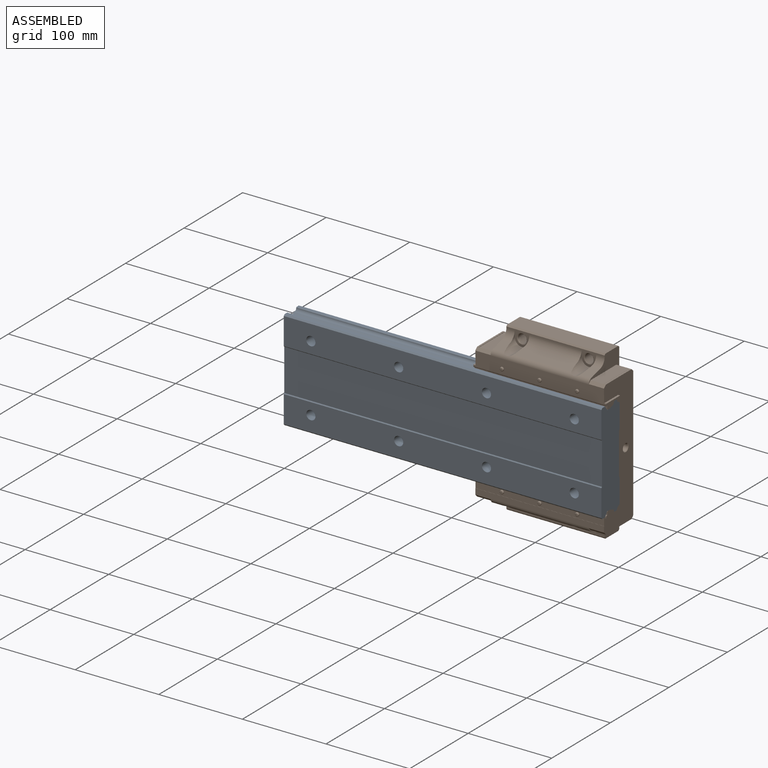
[diagram: assembled view]
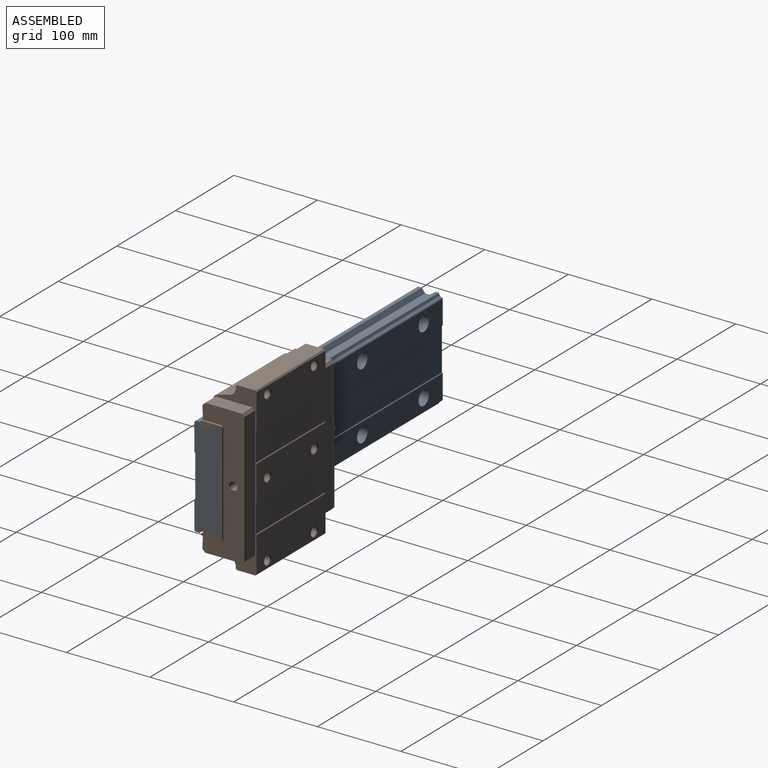
[diagram: assembled view, second angle]
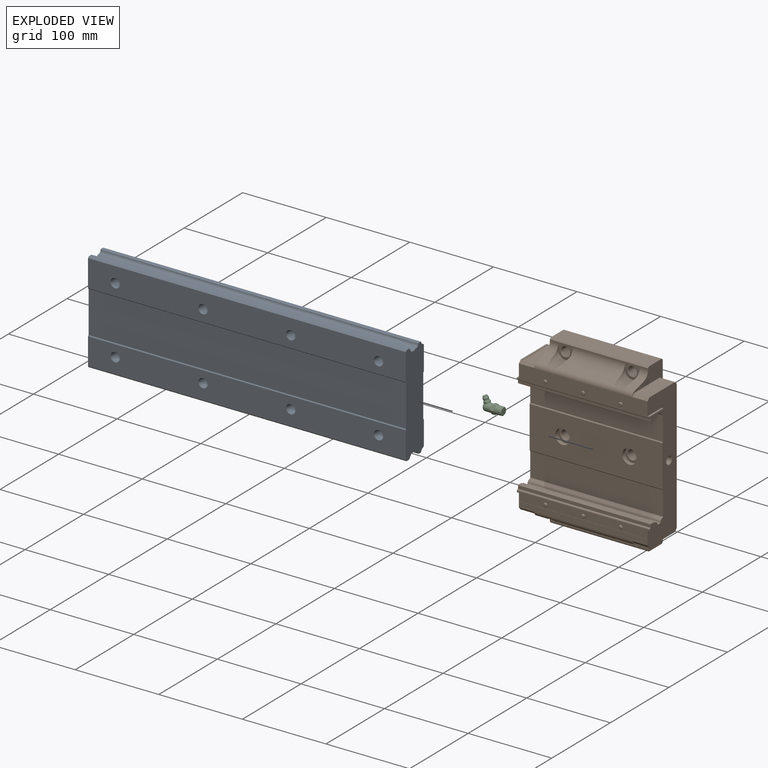
[diagram: exploded view]
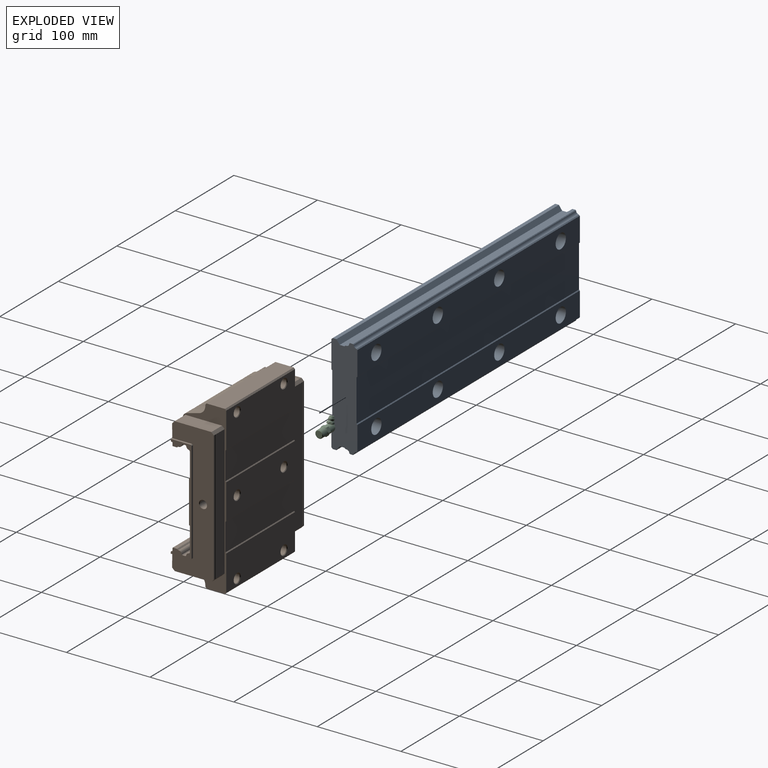
[diagram: exploded view, second angle]
ASSEMBLY  parts=3 mates=2
PART A: 58 faces, bbox 380x31x120 mm
  f0: plane 380x3.63mm, normal (0,0,1), area 1380.9mm2, adj f1,f31,f32,f33
  f1: plane 380x0.75mm, normal (0,-0.61,0.79), area 362.6mm2, adj f0,f2,f32,f33
  f2: cylinder r=3.72mm len=380mm, axis (-1,0,0), area 2415.7mm2, adj f1,f3,f32,f33
  f3: plane 380x1.5mm, normal (0,-0.61,0.79), area 718.9mm2, adj f2,f4,f32,f33
  f4: plane 380x5.66mm, normal (0,0,1), area 2150.4mm2, adj f3,f5,f32,f33
  f5: plane 380x5.18mm, normal (0,0.8,0.6), area 2457.5mm2, adj f4,f6,f32,f33
  f6: plane 380x4.47mm, normal (0,0,1), area 1699.7mm2, adj f5,f7,f32,f33
  f7: plane 380x1.5mm, normal (0,-0.71,0.71), area 806.1mm2, adj f6,f8,f32,f33
  f8: plane 380x32.5mm, normal (0,-1,0), area 11969.9mm2, adj f7,f9,f32,f33,f36,f39,f42,f45
  f9: plane 380x1mm, normal (0,-0.71,-0.71), area 537.4mm2, adj f8,f10,f32,f33
  f10: plane 380x50mm, normal (0,-1,0), area 19000mm2, adj f9,f11,f32,f33
  f11: plane 380x1mm, normal (0,-0.71,0.71), area 537.4mm2, adj f10,f12,f32,f33
  f12: plane 380x32.5mm, normal (0,-1,0), area 11969.9mm2, adj f11,f13,f32,f33,f48,f51,f54,f57
  f13: plane 380x1.5mm, normal (0,-0.71,-0.71), area 806.1mm2, adj f12,f14,f32,f33
  f14: plane 380x4.47mm, normal (0,0,-1), area 1699.7mm2, adj f13,f15,f32,f33
  f15: plane 380x5.18mm, normal (0,0.8,-0.6), area 2457.5mm2, adj f14,f16,f32,f33
  f16: plane 380x5.66mm, normal (0,0,-1), area 2150.4mm2, adj f15,f17,f32,f33
  f17: plane 380x1.5mm, normal (0,-0.61,-0.79), area 718.9mm2, adj f16,f18,f32,f33
  f18: cylinder r=3.72mm len=380mm, axis (-1,0,0), area 2415.7mm2, adj f17,f19,f32,f33
  f19: plane 380x0.75mm, normal (0,-0.61,-0.79), area 362.6mm2, adj f18,f20,f32,f33
  f20: plane 380x3.63mm, normal (0,0,-1), area 1380.9mm2, adj f19,f21,f32,f33
  f21: plane 380x0.77mm, normal (0,0.71,-0.71), area 413.3mm2, adj f20,f22,f32,f33
  f22: cylinder r=3.72mm len=380mm, axis (-1,0,0), area 1919.7mm2, adj f21,f23,f32,f33
  f23: plane 380x1.11mm, normal (0,0.71,-0.71), area 596.5mm2, adj f22,f24,f32,f33
  f24: plane 380x28.82mm, normal (0,1,0), area 9988.3mm2, adj f23,f25,f32,f33,f46,f49,f52,f55
  f25: plane 380x1mm, normal (0,0.71,0.71), area 537.4mm2, adj f24,f26,f32,f33
  f26: plane 380x50mm, normal (0,1,0), area 19000mm2, adj f25,f27,f32,f33
  f27: plane 380x1mm, normal (0,0.71,-0.71), area 537.4mm2, adj f26,f28,f32,f33
  f28: plane 380x28.82mm, normal (0,1,0), area 9988.3mm2, adj f27,f29,f32,f33,f34,f37,f40,f43
  f29: plane 380x1.11mm, normal (0,0.71,0.71), area 596.5mm2, adj f28,f30,f32,f33
  f30: cylinder r=3.72mm len=380mm, axis (-1,0,0), area 1919.7mm2, adj f29,f31,f32,f33
  f31: plane 380x0.77mm, normal (0,0.71,0.71), area 413.3mm2, adj f0,f30,f32,f33
  f32: plane 120x31mm, normal (1,0,0), area 3460.3mm2, adj f0,f1,f2,f3,f4,f5,f6,f7
  f33: plane 120x31mm, normal (-1,0,0), area 3460.3mm2, adj f0,f1,f2,f3,f4,f5,f6,f7
  f34: cylinder r=8.75mm len=17.5mm, axis (0,-1,0), area 769.7mm2, adj f28,f35
  f35: plane 17.5x17.5mm, normal (0,1,0), area 145.5mm2, adj f34,f36
  f36: cylinder r=5.5mm len=17mm, axis (0,-1,0), area 587.5mm2, adj f8,f35
  f37: cylinder r=8.75mm len=17.5mm, axis (0,-1,0), area 769.7mm2, adj f28,f38
  f38: plane 17.5x17.5mm, normal (0,1,0), area 145.5mm2, adj f37,f39
  f39: cylinder r=5.5mm len=17mm, axis (0,-1,0), area 587.5mm2, adj f8,f38
  f40: cylinder r=8.75mm len=17.5mm, axis (0,-1,0), area 769.7mm2, adj f28,f41
  f41: plane 17.5x17.5mm, normal (0,1,0), area 145.5mm2, adj f40,f42
  f42: cylinder r=5.5mm len=17mm, axis (0,-1,0), area 587.5mm2, adj f8,f41
  f43: cylinder r=8.75mm len=17.5mm, axis (0,-1,0), area 769.7mm2, adj f28,f44
  f44: plane 17.5x17.5mm, normal (0,1,0), area 145.5mm2, adj f43,f45
  f45: cylinder r=5.5mm len=17mm, axis (0,-1,0), area 587.5mm2, adj f8,f44
  f46: cylinder r=8.75mm len=17.5mm, axis (0,-1,0), area 769.7mm2, adj f24,f47
  f47: plane 17.5x17.5mm, normal (0,1,0), area 145.5mm2, adj f46,f48
  f48: cylinder r=5.5mm len=17mm, axis (0,-1,0), area 587.5mm2, adj f12,f47
  f49: cylinder r=8.75mm len=17.5mm, axis (0,-1,0), area 769.7mm2, adj f24,f50
  f50: plane 17.5x17.5mm, normal (0,1,0), area 145.5mm2, adj f49,f51
  f51: cylinder r=5.5mm len=17mm, axis (0,-1,0), area 587.5mm2, adj f12,f50
  f52: cylinder r=8.75mm len=17.5mm, axis (0,-1,0), area 769.7mm2, adj f24,f53
  f53: plane 17.5x17.5mm, normal (0,1,0), area 145.5mm2, adj f52,f54
  f54: cylinder r=5.5mm len=17mm, axis (0,-1,0), area 587.5mm2, adj f12,f53
  f55: cylinder r=8.75mm len=17.5mm, axis (0,-1,0), area 769.7mm2, adj f24,f56
  f56: plane 17.5x17.5mm, normal (0,1,0), area 145.5mm2, adj f55,f57
  f57: cylinder r=5.5mm len=17mm, axis (0,-1,0), area 587.5mm2, adj f12,f56
PART B: 176 faces, bbox 158.9x53.5x200 mm
  f0: plane 18.2x3mm, normal (0,0.71,-0.71), area 76.9mm2, adj f6,f7,f18,f26,f27,f63,f126,f127
  f1: plane 18.2x3mm, normal (0,0.71,0.71), area 76.9mm2, adj f2,f3,f18,f26,f27,f63,f126,f127
  f2: plane 43.9x2.15mm, normal (0,0,1), area 94.4mm2, adj f1,f4,f18,f174
  f3: plane 43.9x15.55mm, normal (0,0,1), area 682.6mm2, adj f1,f4,f63,f175
  f4: plane 18.2x3.1mm, normal (0,-0.71,0.71), area 79.6mm2, adj f2,f3,f16,f18,f63,f97,f174,f175
  f5: plane 18.2x3.1mm, normal (0,-0.71,-0.71), area 79.6mm2, adj f6,f7,f17,f18,f63,f98,f172,f173
  f6: plane 43.9x15.55mm, normal (0,0,-1), area 682.6mm2, adj f0,f5,f63,f173
  f7: plane 43.9x2.15mm, normal (0,0,-1), area 94.4mm2, adj f0,f5,f18,f172
  f8: plane 18.2x3mm, normal (0,0.71,-0.71), area 76.9mm2, adj f14,f15,f19,f28,f29,f64,f124,f125
  f9: plane 18.2x3mm, normal (0,0.71,0.71), area 76.9mm2, adj f10,f11,f19,f28,f29,f64,f124,f125
  f10: plane 43.9x15.55mm, normal (0,0,1), area 682.6mm2, adj f9,f12,f64,f170
  f11: plane 43.9x2.15mm, normal (0,0,1), area 94.4mm2, adj f9,f12,f19,f171
  f12: plane 18.2x3.1mm, normal (0,-0.71,0.71), area 79.6mm2, adj f10,f11,f16,f19,f64,f96,f170,f171
  f13: plane 18.2x3.1mm, normal (0,-0.71,-0.71), area 79.6mm2, adj f14,f15,f17,f19,f64,f95,f168,f169
  f14: plane 43.9x2.15mm, normal (0,0,-1), area 94.4mm2, adj f8,f13,f19,f169
  f15: plane 43.9x15.55mm, normal (0,0,-1), area 682.6mm2, adj f8,f13,f64,f168
  f16: plane 153.9x7mm, normal (0,-1,0), area 1004.7mm2, adj f4,f12,f18,f19,f46,f96,f97,f135
  f17: plane 153.9x7mm, normal (0,-1,0), area 1004.7mm2, adj f5,f13,f18,f19,f47,f95,f98,f129
  f18: plane 162x50mm, normal (1,0,0), area 4904.5mm2, adj f0,f1,f2,f4,f5,f7,f16,f17
  f19: plane 162x50mm, normal (-1,0,0), area 4904.5mm2, adj f8,f9,f11,f12,f13,f14,f16,f17
  f20: plane 23.8x2.5mm, normal (0,0,1), area 59.5mm2, adj f19,f30,f101,f134
  f21: plane 23.8x2.5mm, normal (0,0,-1), area 59.5mm2, adj f19,f30,f99,f128
  f22: plane 23.8x2.5mm, normal (0,0,1), area 59.5mm2, adj f18,f31,f104,f134
  f23: plane 23.8x2.5mm, normal (0,0,-1), area 59.5mm2, adj f18,f31,f102,f128
  f24: plane 158.9x4.9mm, normal (0,0,-1), area 778.6mm2, adj f30,f31,f108,f136
  f25: plane 158.9x4.9mm, normal (0,0,1), area 778.6mm2, adj f30,f31,f109,f130
  f26: plane 156x15.55mm, normal (0,1,0), area 2425.8mm2, adj f0,f1,f63,f126
  f27: plane 156x2.15mm, normal (0,1,0), area 335.4mm2, adj f0,f1,f18,f127
  f28: plane 156x2.15mm, normal (0,1,0), area 335.4mm2, adj f8,f9,f19,f124
  f29: plane 156x15.55mm, normal (0,1,0), area 2425.8mm2, adj f8,f9,f64,f125
  f30: plane 124x24.8mm, normal (-1,0,0), area 523.7mm2, adj f20,f21,f24,f25,f99,f100,f101,f105
  f31: plane 124x24.8mm, normal (1,0,0), area 523.7mm2, adj f22,f23,f24,f25,f102,f103,f104,f105
  f32: plane 69.3x15.14mm, normal (0,-0.26,-0.97), area 1031.1mm2, adj f33,f47,f90,f93
  f33: cylinder r=10mm len=63.47mm, axis (-1,0,0), area 820.4mm2, adj f32,f50,f90,f91,f92,f93
  f34: plane 15.14x13.4mm, normal (0,-0.26,-0.97), area 182.5mm2, adj f35,f47,f64,f90
  f35: cylinder r=10mm len=10.48mm, axis (-1,0,0), area 132mm2, adj f34,f50,f64,f89,f90
  f36: plane 15.14x13.4mm, normal (0,-0.26,0.97), area 182.5mm2, adj f44,f46,f63,f86
  f37: cylinder r=10mm len=63.47mm, axis (-1,0,0), area 820.4mm2, adj f39,f43,f83,f85,f86,f87
  f38: cylinder r=10mm len=10.48mm, axis (-1,0,0), area 132mm2, adj f43,f45,f64,f83,f84
  f39: plane 69.3x15.14mm, normal (0,-0.26,0.97), area 1031.1mm2, adj f37,f46,f83,f86
  f40: plane 117.5x1.5mm, normal (0,0.71,0.71), area 249.3mm2, adj f41,f62,f63,f64
  f41: plane 117.5x22mm, normal (0,0,1), area 2585mm2, adj f40,f42,f63,f64
  f42: plane 117.5x1.5mm, normal (0,-0.71,0.71), area 249.3mm2, adj f41,f43,f63,f64
  f43: plane 117.5x17.25mm, normal (0,-1,0), area 452.6mm2, adj f37,f38,f42,f44,f63,f64,f65,f68
  f44: cylinder r=10mm len=10.48mm, axis (-1,0,0), area 132mm2, adj f36,f43,f63,f86,f88
  f45: plane 15.14x13.4mm, normal (0,-0.26,0.97), area 182.5mm2, adj f38,f46,f64,f83
  f46: cylinder r=6mm len=117.5mm, axis (-1,0,0), area 867.1mm2, adj f16,f36,f39,f45,f63,f64,f83,f86
  f47: cylinder r=6mm len=117.5mm, axis (-1,0,0), area 867.1mm2, adj f17,f32,f34,f48,f63,f64,f90,f93
  f48: plane 15.14x13.4mm, normal (0,-0.26,-0.97), area 182.5mm2, adj f47,f49,f63,f93
  f49: cylinder r=10mm len=10.48mm, axis (-1,0,0), area 132mm2, adj f48,f50,f63,f93,f94
  f50: plane 117.5x17.25mm, normal (0,-1,0), area 452.6mm2, adj f33,f35,f49,f51,f63,f64,f77,f80
  f51: plane 117.5x1.5mm, normal (0,-0.71,-0.71), area 249.3mm2, adj f50,f52,f63,f64
  f52: plane 117.5x22mm, normal (0,0,-1), area 2585mm2, adj f51,f53,f63,f64
  f53: plane 117.5x1.5mm, normal (0,0.71,-0.71), area 249.3mm2, adj f52,f54,f63,f64
  f54: plane 117.5x42.5mm, normal (0,1,0), area 4767.6mm2, adj f53,f55,f63,f64,f79,f82
  f55: plane 117.5x1mm, normal (0,0.71,0.71), area 166.2mm2, adj f54,f56,f63,f64
  f56: plane 117.5x33mm, normal (0,1,0), area 3877.5mm2, adj f55,f57,f63,f64
  f57: plane 117.5x1mm, normal (0,0.71,-0.71), area 166.2mm2, adj f56,f58,f63,f64
  f58: plane 117.5x42mm, normal (0,1,0), area 4708.8mm2, adj f57,f59,f63,f64,f73,f76
  f59: plane 117.5x1mm, normal (0,0.71,0.71), area 166.2mm2, adj f58,f60,f63,f64
  f60: plane 117.5x33mm, normal (0,1,0), area 3877.5mm2, adj f59,f61,f63,f64
  f61: plane 117.5x1mm, normal (0,0.71,-0.71), area 166.2mm2, adj f60,f62,f63,f64
  f62: plane 117.5x42.5mm, normal (0,1,0), area 4767.6mm2, adj f40,f61,f63,f64,f67,f70
  f63: plane 200x51.96mm, normal (1,0,0), area 1477.7mm2, adj f0,f1,f3,f4,f5,f6,f26,f36
  f64: plane 200x51.96mm, normal (-1,0,0), area 1477.7mm2, adj f8,f9,f10,f12,f13,f15,f29,f34
  f65: cone r=6mm half-angle=45deg, axis (0,-1,0), area 37.5mm2, adj f43,f66
  f66: cylinder r=5.25mm len=23.5mm, axis (0,1,0), area 775.2mm2, adj f65,f67
  f67: cone r=5.25mm half-angle=45deg, axis (0,1,0), area 37.5mm2, adj f62,f66
  f68: cone r=6mm half-angle=45deg, axis (0,-1,0), area 37.5mm2, adj f43,f69
  f69: cylinder r=5.25mm len=23.5mm, axis (0,1,0), area 775.2mm2, adj f68,f70
  f70: cone r=5.25mm half-angle=45deg, axis (0,1,0), area 37.5mm2, adj f62,f69
  f71: cone r=6mm half-angle=45deg, axis (0,-1,0), area 37.5mm2, adj f72,f166
  f72: cylinder r=5.25mm len=23.5mm, axis (0,1,0), area 775.2mm2, adj f71,f73
  f73: cone r=5.25mm half-angle=45deg, axis (0,1,0), area 37.5mm2, adj f58,f72
  f74: cone r=6mm half-angle=45deg, axis (0,-1,0), area 37.5mm2, adj f75,f164
  f75: cylinder r=5.25mm len=23.5mm, axis (0,1,0), area 775.2mm2, adj f74,f76
  f76: cone r=5.25mm half-angle=45deg, axis (0,1,0), area 37.5mm2, adj f58,f75
  f77: cone r=6mm half-angle=45deg, axis (0,-1,0), area 37.5mm2, adj f50,f78
  f78: cylinder r=5.25mm len=23.5mm, axis (0,1,0), area 775.2mm2, adj f77,f79
  f79: cone r=5.25mm half-angle=45deg, axis (0,1,0), area 37.5mm2, adj f54,f78
  f80: cone r=6mm half-angle=45deg, axis (0,-1,0), area 37.5mm2, adj f50,f81
  f81: cylinder r=5.25mm len=23.5mm, axis (0,1,0), area 775.2mm2, adj f80,f82
  f82: cone r=5.25mm half-angle=45deg, axis (0,1,0), area 37.5mm2, adj f54,f81
  f83: cylinder r=8.75mm len=25.5mm, axis (0,1,0), area 468.8mm2, adj f37,f38,f39,f43,f45,f46,f84,f85
  f84: plane 6.79x2.66mm, normal (1,0,0), area 5.7mm2, adj f38,f43,f83
  f85: plane 6.79x2.66mm, normal (-1,0,0), area 5.7mm2, adj f37,f43,f83
  f86: cylinder r=8.75mm len=25.5mm, axis (0,1,0), area 468.8mm2, adj f36,f37,f39,f43,f44,f46,f87,f88
  f87: plane 6.79x2.66mm, normal (1,0,0), area 5.7mm2, adj f37,f43,f86
  f88: plane 6.79x2.66mm, normal (-1,0,0), area 5.7mm2, adj f43,f44,f86
  f89: plane 6.79x2.66mm, normal (1,0,0), area 5.7mm2, adj f35,f50,f90
  f90: cylinder r=8.75mm len=25.5mm, axis (0,1,0), area 468.8mm2, adj f32,f33,f34,f35,f47,f50,f89,f91
  f91: plane 6.79x2.66mm, normal (-1,0,0), area 5.7mm2, adj f33,f50,f90
  f92: plane 6.79x2.66mm, normal (1,0,0), area 5.7mm2, adj f33,f50,f93
  f93: cylinder r=8.75mm len=25.5mm, axis (0,1,0), area 468.8mm2, adj f32,f33,f47,f48,f49,f50,f92,f94
  f94: plane 6.79x2.66mm, normal (-1,0,0), area 5.7mm2, adj f49,f50,f93
  f95: plane 0.65x0.04mm, normal (1,0,0), area 0mm2, adj f13,f17,f47
  f96: plane 0.65x0.04mm, normal (1,0,0), area 0mm2, adj f12,f16,f46
  f97: plane 0.65x0.04mm, normal (-1,0,0), area 0mm2, adj f4,f16,f46
  f98: plane 0.65x0.04mm, normal (-1,0,0), area 0mm2, adj f5,f17,f47
  f99: plane 2.5x1mm, normal (0,0.71,-0.71), area 3.5mm2, adj f19,f21,f30,f100
  f100: plane 122x2.5mm, normal (0,1,0), area 305mm2, adj f19,f30,f99,f101
  f101: plane 2.5x1mm, normal (0,0.71,0.71), area 3.5mm2, adj f19,f20,f30,f100
  f102: plane 2.5x1mm, normal (0,0.71,-0.71), area 3.5mm2, adj f18,f23,f31,f103
  f103: plane 122x2.5mm, normal (0,1,0), area 305mm2, adj f18,f31,f102,f104
  f104: plane 2.5x1mm, normal (0,0.71,0.71), area 3.5mm2, adj f18,f22,f31,f103
  f105: plane 158.9x3.63mm, normal (0,0,-1), area 577.4mm2, adj f30,f31,f106,f123
  f106: plane 158.9x0.75mm, normal (0,0.61,-0.79), area 151.6mm2, adj f30,f31,f105,f107
  f107: cylinder r=3.72mm len=158.9mm, axis (-1,0,0), area 1010.2mm2, adj f30,f31,f106,f108
  f108: plane 158.9x1.5mm, normal (0,0.61,-0.79), area 300.6mm2, adj f24,f30,f31,f107
  f109: plane 158.9x1.5mm, normal (0,0.61,0.79), area 300.6mm2, adj f25,f30,f31,f110
  f110: cylinder r=3.72mm len=158.9mm, axis (-1,0,0), area 1010.2mm2, adj f30,f31,f109,f111
  f111: plane 158.9x0.75mm, normal (0,0.61,0.79), area 151.6mm2, adj f30,f31,f110,f112
  f112: plane 158.9x3.63mm, normal (0,0,1), area 577.4mm2, adj f30,f31,f111,f113
  f113: plane 158.9x0.77mm, normal (0,-0.71,0.71), area 172.8mm2, adj f30,f31,f112,f114
  f114: cylinder r=3.72mm len=158.9mm, axis (-1,0,0), area 802.7mm2, adj f30,f31,f113,f115
  f115: plane 158.9x1.11mm, normal (0,-0.71,0.71), area 249.4mm2, adj f30,f31,f114,f116
  f116: plane 158.9x28.82mm, normal (0,-1,0), area 4579mm2, adj f30,f31,f115,f117
  f117: plane 158.9x1mm, normal (0,-0.71,-0.71), area 224.7mm2, adj f30,f31,f116,f118
  f118: plane 158.9x50mm, normal (0,-1,0), area 7463.9mm2, adj f30,f31,f117,f119,f165,f167
  f119: plane 158.9x1mm, normal (0,-0.71,0.71), area 224.7mm2, adj f30,f31,f118,f120
  f120: plane 158.9x28.82mm, normal (0,-1,0), area 4579mm2, adj f30,f31,f119,f121
  f121: plane 158.9x1.11mm, normal (0,-0.71,-0.71), area 249.4mm2, adj f30,f31,f120,f122
  f122: cylinder r=3.72mm len=158.9mm, axis (-1,0,0), area 802.7mm2, adj f30,f31,f121,f123
  f123: plane 158.9x0.77mm, normal (0,-0.71,-0.71), area 172.8mm2, adj f30,f31,f105,f122
  f124: plane 157x0.5mm, normal (1,0,0), area 78.3mm2, adj f8,f9,f28,f125
  f125: plane 157x0.5mm, normal (-0.71,0.71,0), area 110.7mm2, adj f8,f9,f29,f124
  f126: plane 157x0.5mm, normal (0.71,0.71,0), area 110.7mm2, adj f0,f1,f26,f127
  f127: plane 157x0.5mm, normal (-1,0,0), area 78.3mm2, adj f0,f1,f27,f126
  f128: plane 158.9x10.4mm, normal (0,-1,0), area 1560.3mm2, adj f18,f19,f21,f23,f30,f31,f129,f133
  f129: plane 153.9x0.2mm, normal (0,0,1), area 30.8mm2, adj f17,f18,f19,f128
  f130: plane 158.9x0.4mm, normal (0,-0.71,0.71), area 89.9mm2, adj f25,f30,f31,f131
  f131: plane 158.9x3.78mm, normal (0,-1,0), area 601.1mm2, adj f30,f31,f130,f132
  f132: plane 158.9x0.5mm, normal (0,0,1), area 79.5mm2, adj f30,f31,f131,f133
  f133: cylinder r=1.5mm len=158.9mm, axis (-1,0,0), area 374.4mm2, adj f30,f31,f128,f132
  f134: plane 158.9x10.4mm, normal (0,-1,0), area 1560.3mm2, adj f18,f19,f20,f22,f30,f31,f135,f139
  f135: plane 153.9x0.2mm, normal (0,0,-1), area 30.8mm2, adj f16,f18,f19,f134
  f136: plane 158.9x0.4mm, normal (0,-0.71,-0.71), area 89.9mm2, adj f24,f30,f31,f137
  f137: plane 158.9x3.78mm, normal (0,-1,0), area 601.1mm2, adj f30,f31,f136,f138
  f138: plane 158.9x0.5mm, normal (0,0,-1), area 79.5mm2, adj f30,f31,f137,f139
  f139: cylinder r=1.5mm len=158.9mm, axis (-1,0,0), area 374.4mm2, adj f30,f31,f134,f138
  f140: plane 2.25x2.25mm, normal (0,-1,0), area 4mm2, adj f141
  f141: torus R=1.12mm, axis (0,1,0), area 20.4mm2, adj f140,f142
  f142: cylinder r=2.25mm len=4.5mm, axis (0,1,0), area 8.1mm2, adj f128,f141
  f143: plane 2.25x2.25mm, normal (0,-1,0), area 4mm2, adj f144
  f144: torus R=1.12mm, axis (0,1,0), area 20.4mm2, adj f143,f145
  f145: cylinder r=2.25mm len=4.5mm, axis (0,1,0), area 8.1mm2, adj f128,f144
  f146: plane 2.25x2.25mm, normal (0,-1,0), area 4mm2, adj f147
  f147: torus R=1.12mm, axis (0,1,0), area 20.4mm2, adj f146,f148
  f148: cylinder r=2.25mm len=4.5mm, axis (0,1,0), area 8.1mm2, adj f134,f147
  f149: plane 2.25x2.25mm, normal (0,-1,0), area 4mm2, adj f150
  f150: torus R=1.12mm, axis (0,1,0), area 20.4mm2, adj f149,f151
  f151: cylinder r=2.25mm len=4.5mm, axis (0,1,0), area 8.1mm2, adj f134,f150
  f152: plane 2.25x2.25mm, normal (0,-1,0), area 4mm2, adj f153
  f153: torus R=1.12mm, axis (0,1,0), area 20.4mm2, adj f152,f154
  f154: cylinder r=2.25mm len=4.5mm, axis (0,1,0), area 8.1mm2, adj f128,f153
  f155: plane 2.25x2.25mm, normal (0,-1,0), area 4mm2, adj f156
  f156: torus R=1.12mm, axis (0,1,0), area 20.4mm2, adj f155,f157
  f157: cylinder r=2.25mm len=4.5mm, axis (0,1,0), area 8.1mm2, adj f134,f156
  f158: cone r=4.86mm half-angle=46.5deg, axis (-1,0,0), area 23.6mm2, adj f19,f159
  f159: cone r=4.27mm half-angle=1.5deg, axis (-1,0,0), area 235.3mm2, adj f158,f160
  f160: cone r=4.04mm half-angle=61.5deg, axis (-1,0,0), area 58.3mm2, adj f159
  f161: cone r=0mm half-angle=61.5deg, axis (1,0,0), area 58.3mm2, adj f162
  f162: cone r=4.04mm half-angle=1.5deg, axis (1,0,0), area 235.3mm2, adj f161,f163
  f163: cone r=4.27mm half-angle=46.5deg, axis (1,0,0), area 23.6mm2, adj f18,f162
  f164: plane 17.5x17.5mm, normal (0,-1,0), area 127.4mm2, adj f74,f165
  f165: cylinder r=8.75mm len=17.5mm, axis (0,-1,0), area 274.9mm2, adj f118,f164
  f166: plane 17.5x17.5mm, normal (0,-1,0), area 127.4mm2, adj f71,f167
  f167: cylinder r=8.75mm len=17.5mm, axis (0,-1,0), area 274.9mm2, adj f118,f166
  f168: plane 44.9x0.5mm, normal (-0.71,0,-0.71), area 31.4mm2, adj f8,f13,f15,f169
  f169: plane 44.9x0.5mm, normal (1,0,0), area 22.2mm2, adj f8,f13,f14,f168
  f170: plane 44.9x0.5mm, normal (-0.71,0,0.71), area 31.4mm2, adj f9,f10,f12,f171
  f171: plane 44.9x0.5mm, normal (1,0,0), area 22.2mm2, adj f9,f11,f12,f170
  f172: plane 44.9x0.5mm, normal (-1,0,0), area 22.2mm2, adj f0,f5,f7,f173
  f173: plane 44.9x0.5mm, normal (0.71,0,-0.71), area 31.4mm2, adj f0,f5,f6,f172
  f174: plane 44.9x0.5mm, normal (-1,0,0), area 22.2mm2, adj f1,f2,f4,f175
  f175: plane 44.9x0.5mm, normal (0.71,0,0.71), area 31.4mm2, adj f1,f3,f4,f174
PART C: 31 faces, bbox 24.7x11.6x18.3 mm
  f0: cone r=3.44mm half-angle=45deg, axis (-0.37,0,0.93), area 7.3mm2, adj f17,f18,f19,f20,f21,f22,f23,f24
  f1: torus R=1.8mm, axis (1,0,0), area 88.2mm2, adj f2,f4,f17,f18
  f2: cylinder r=4.8mm len=9.6mm, axis (1,0,0), area 215.2mm2, adj f1,f5,f18
  f3: cone r=4.88mm half-angle=60deg, axis (1,0,0), area 13.6mm2, adj f5,f6,f7,f8,f9,f10,f11
  f4: plane 3.6x3.6mm, normal (-1,0,0), area 10.2mm2, adj f1
  f5: plane 9.76x9.76mm, normal (-1,0,0), area 2.4mm2, adj f2,f3
  f6: plane 5.78x4.56mm, normal (0,0,1), area 24.6mm2, adj f3,f7,f11,f16
  f7: plane 5x4.57mm, normal (0,0.87,0.5), area 24.6mm2, adj f3,f6,f8,f16
  f8: plane 5x4.57mm, normal (0,0.87,-0.5), area 24.6mm2, adj f3,f7,f9,f16
  f9: plane 5.78x4.56mm, normal (0,0,-1), area 24.6mm2, adj f3,f8,f10,f16
  f10: plane 5x4.57mm, normal (0,-0.87,-0.5), area 24.6mm2, adj f3,f9,f11,f16
  f11: plane 5x4.57mm, normal (0,-0.87,0.5), area 24.6mm2, adj f3,f6,f10,f16
  f12: plane 8.12x8.12mm, normal (1,0,0), area 51.8mm2, adj f13
  f13: cone r=4.67mm half-angle=46.5deg, axis (-1,0,0), area 23.2mm2, adj f12,f14
  f14: cone r=4.86mm half-angle=1.5deg, axis (-1,0,0), area 222.3mm2, adj f13,f15
  f15: plane 9.76x9.76mm, normal (1,0,0), area 0.6mm2, adj f14,f16
  f16: cone r=5.84mm half-angle=60deg, axis (-1,0,0), area 13.6mm2, adj f6,f7,f8,f9,f10,f11,f15
  f17: plane 6.39x2.4mm, normal (-0.37,0,0.93), area 4.5mm2, adj f0,f1
  f18: plane 6.91x4.5mm, normal (0.37,0,-0.93), area 13.3mm2, adj f0,f1,f2
  f19: plane 3.5x2.27mm, normal (0.8,0.5,0.32), area 7.4mm2, adj f0,f20,f24,f30
  f20: plane 4.15x2.57mm, normal (0,1,0), area 7.4mm2, adj f0,f19,f21,f30
  f21: plane 3.5x2.27mm, normal (-0.8,0.5,-0.32), area 7.4mm2, adj f0,f20,f22,f30
  f22: plane 3.5x2.27mm, normal (-0.8,-0.5,-0.32), area 7.4mm2, adj f0,f21,f23,f30
  f23: plane 4.15x2.57mm, normal (0,-1,0), area 7.4mm2, adj f0,f22,f24,f30
  f24: plane 3.5x2.27mm, normal (0.8,-0.5,0.32), area 7.4mm2, adj f0,f19,f23,f30
  f25: sphere r=1.82mm, area 3.5mm2, adj f26
  f26: plane 4.85x4.5mm, normal (-0.37,0,0.93), area 15.2mm2, adj f25,f27
  f27: cone r=3.3mm half-angle=18deg, axis (0.37,0,-0.93), area 51mm2, adj f26,f28
  f28: sphere r=3.3mm, area 30.9mm2, adj f27,f29
  f29: torus R=3.66mm, axis (-0.37,0,0.93), area 13.5mm2, adj f28,f30
  f30: torus R=8.31mm, axis (-0.37,0,0.93), area 27.7mm2, adj f19,f20,f21,f22,f23,f24,f29
PLACE A t=(32.5,-1,0)mm
PLACE B t=(300.55,5.5,0)mm
PLACE C t=(223.6,44,0)mm
MATE fastened C.f1 <-> B.f158  axis (-1,0,0) through (223.6,44,0)mm
MATE slider B.f31 <-> A.f32  axis (1,0,0) through (380,29,0)mm
